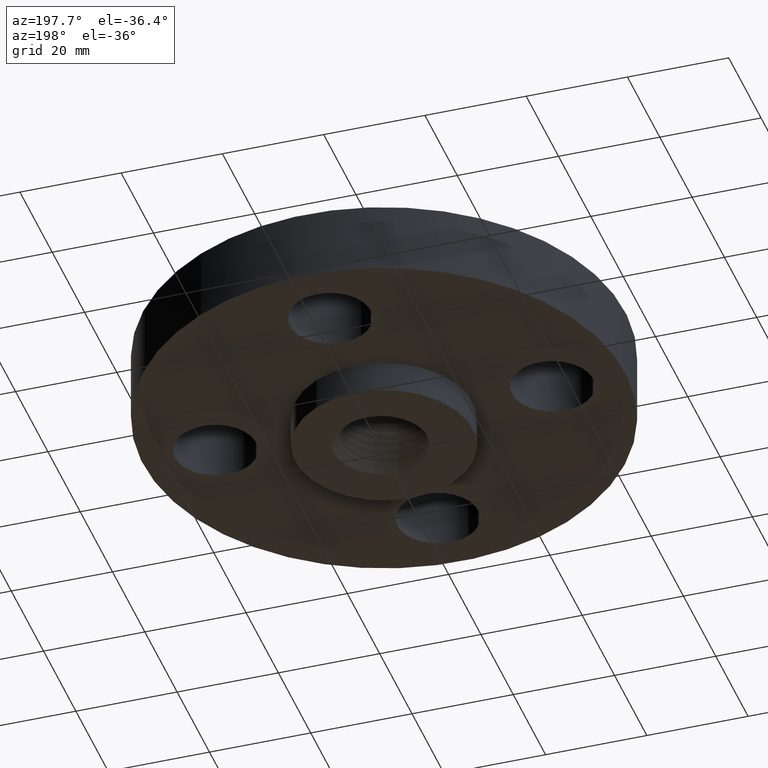
[diagram: clean part render]
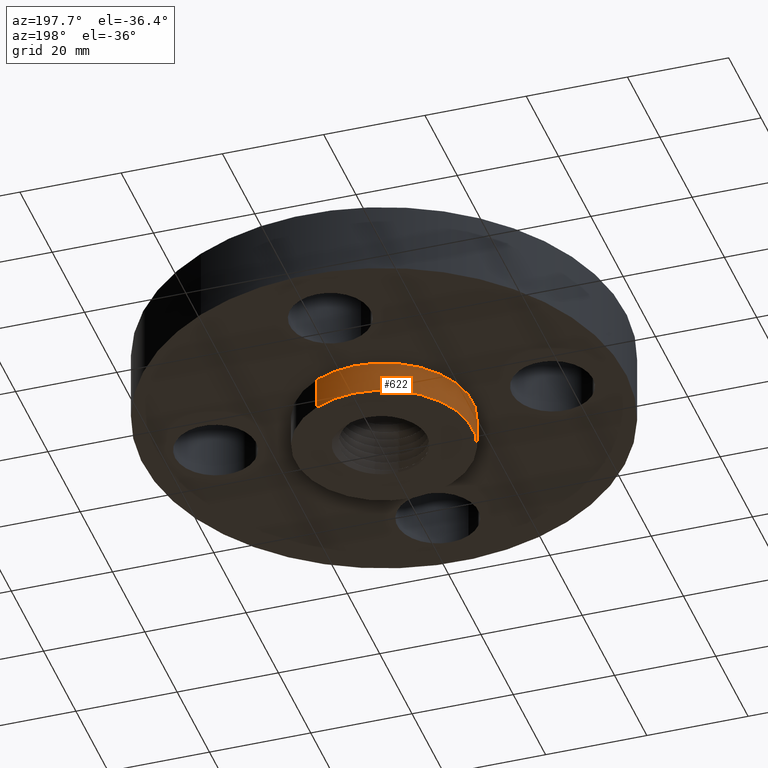
[diagram: same view with one face highlighted and labeled with its STEP entity id]
A machine part, auxiliary view. The second image highlights one B-rep face of the part: STEP entity #622.
In plain terms, the highlighted cylindrical surface (partial cylindrical patch) has radius 17.526 mm, axis along (0, 0, -1).
Its self-contained STEP definition (entity closure, byte-faithful):
#178=AXIS2_PLACEMENT_3D('Circle Axis2P3D',#176,#177,$) ;
#595=AXIS2_PLACEMENT_3D('Cylinder Axis2P3D',#592,#593,#594) ;
#606=AXIS2_PLACEMENT_3D('Circle Axis2P3D',#604,#605,$) ;
#171=CARTESIAN_POINT('Vertex',(0.330803621638,0.605531967707,-0.250000000001)) ;
#173=CARTESIAN_POINT('Vertex',(-0.330803621638,-0.605531967707,-0.250000000001)) ;
#176=CARTESIAN_POINT('Axis2P3D Location',(0.,0.,-0.250000000001)) ;
#592=CARTESIAN_POINT('Axis2P3D Location',(0.,0.,0.315000000001)) ;
#597=CARTESIAN_POINT('Line Origine',(-0.330803621638,-0.605531967707,-0.125000000001)) ;
#601=CARTESIAN_POINT('Vertex',(-0.330803621638,-0.605531967707,1.39870617276E-016)) ;
#604=CARTESIAN_POINT('Axis2P3D Location',(0.,0.,1.39870617276E-016)) ;
#608=CARTESIAN_POINT('Vertex',(0.330803621638,0.605531967707,1.39870617276E-016)) ;
#611=CARTESIAN_POINT('Line Origine',(0.330803621638,0.605531967707,-0.125000000001)) ;
#177=DIRECTION('Axis2P3D Direction',(0.,0.,-0.0393700787402)) ;
#593=DIRECTION('Axis2P3D Direction',(0.,0.,-0.0393700787402)) ;
#594=DIRECTION('Axis2P3D XDirection',(0.0188750212049,0.0345504945626,0.)) ;
#598=DIRECTION('Vector Direction',(0.,0.,-0.0393700787402)) ;
#605=DIRECTION('Axis2P3D Direction',(0.,0.,-0.0393700787402)) ;
#612=DIRECTION('Vector Direction',(0.,0.,-0.0393700787402)) ;
#599=VECTOR('Line Direction',#598,0.0393700787402) ;
#613=VECTOR('Line Direction',#612,0.0393700787402) ;
#617=ORIENTED_EDGE('',*,*,#180,.F.) ;
#618=ORIENTED_EDGE('',*,*,#603,.T.) ;
#619=ORIENTED_EDGE('',*,*,#610,.T.) ;
#620=ORIENTED_EDGE('',*,*,#615,.F.) ;
#622=ADVANCED_FACE('PartBody',(#621),#596,.T.) ;
#179=CIRCLE('generated circle',#178,0.690000000003) ;
#607=CIRCLE('generated circle',#606,0.690000000003) ;
#596=CYLINDRICAL_SURFACE('generated cylinder',#595,0.690000000003) ;
#180=EDGE_CURVE('',#174,#172,#179,.T.) ;
#603=EDGE_CURVE('',#174,#602,#600,.F.) ;
#610=EDGE_CURVE('',#602,#609,#607,.T.) ;
#615=EDGE_CURVE('',#172,#609,#614,.F.) ;
#616=EDGE_LOOP('',(#617,#618,#619,#620)) ;
#621=FACE_OUTER_BOUND('',#616,.T.) ;
#600=LINE('Line',#597,#599) ;
#614=LINE('Line',#611,#613) ;
#172=VERTEX_POINT('',#171) ;
#174=VERTEX_POINT('',#173) ;
#602=VERTEX_POINT('',#601) ;
#609=VERTEX_POINT('',#608) ;